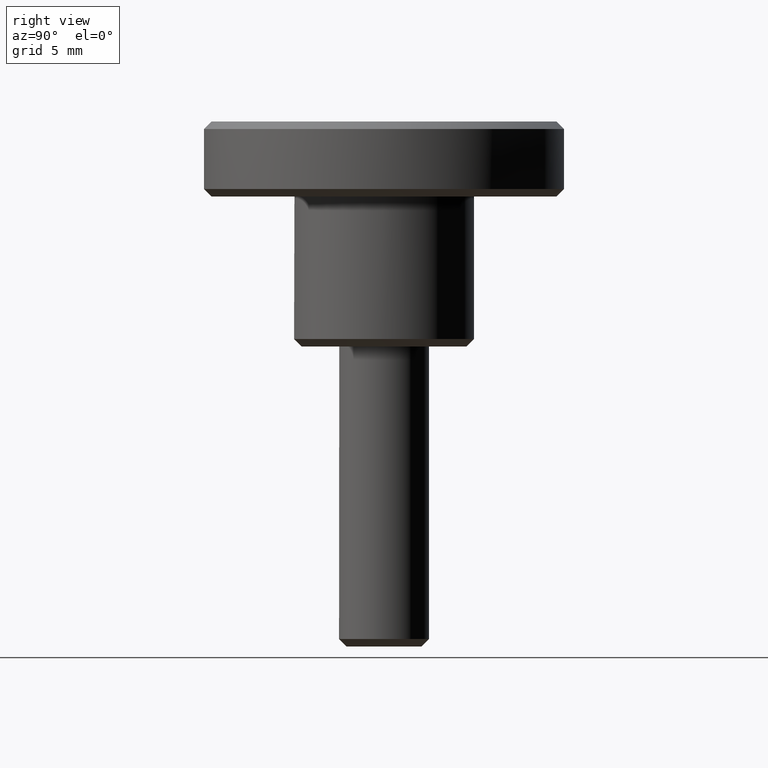
[diagram: clean part render]
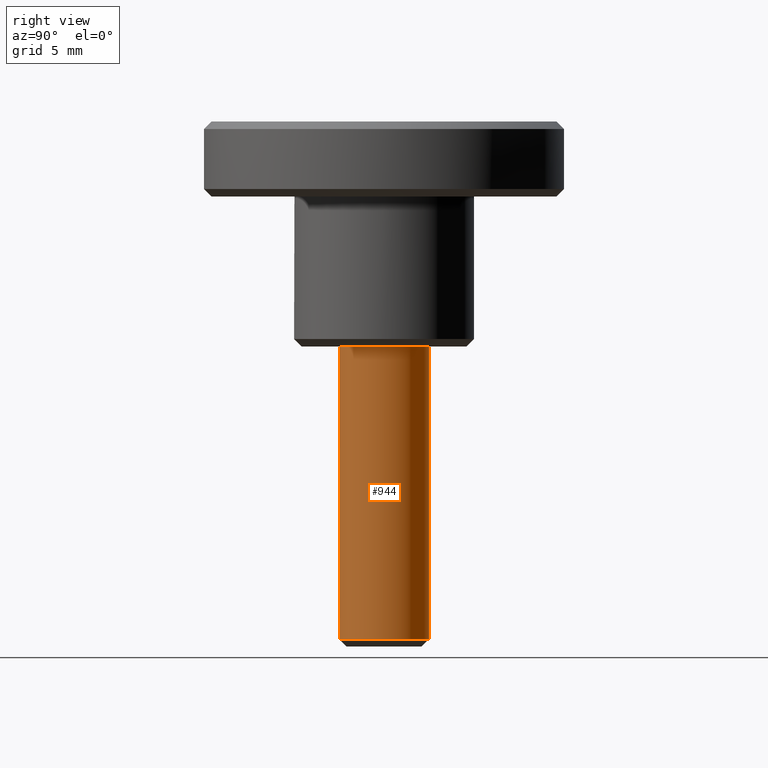
[diagram: same view with one face highlighted and labeled with its STEP entity id]
A machine part, right view. The second image highlights one B-rep face of the part: STEP entity #944.
In plain terms, the highlighted face is a freeform B-spline surface patch.
Its self-contained STEP definition (entity closure, byte-faithful):
#68=CARTESIAN_POINT('',(0.372382066943663,-2.976798884072443,-19.500000000000000));
#69=VERTEX_POINT('',#68);
#126=CARTESIAN_POINT('',(-0.026179606512021,2.999885769192334,-19.500000000000000));
#127=VERTEX_POINT('',#126);
#133=CARTESIAN_POINT('',(3.0,0.0,-19.500000000000000));
#134=VERTEX_POINT('',#133);
#135=CARTESIAN_POINT('',(3.0,0.0,-19.500000000000000));
#136=CARTESIAN_POINT('',(3.0,3.0,-19.500000000000004));
#137=CARTESIAN_POINT('',(0.0,3.0,-19.500000000000000));
#138=CARTESIAN_POINT('',(-0.013090052495911,3.000000000000000,-19.500000000000007));
#139=CARTESIAN_POINT('',(-0.026179606512021,2.999885769192333,-19.500000000000004));
#147=(BOUNDED_CURVE()B_SPLINE_CURVE(2,(#135,#136,#137,#138,#139),.UNSPECIFIED.,.F.,.U.)B_SPLINE_CURVE_WITH_KNOTS((3,2,3),(0.500000000000000,0.750000000000000,0.751539894338957),.UNSPECIFIED.)CURVE()GEOMETRIC_REPRESENTATION_ITEM()RATIONAL_B_SPLINE_CURVE((1.0,0.707106781186548,1.0,0.998195901561721,0.996414028091219))REPRESENTATION_ITEM(''));
#148=EDGE_CURVE('',#134,#127,#147,.T.);
#150=CARTESIAN_POINT('',(0.372382066943663,-2.976798884072443,-19.500000000000000));
#151=CARTESIAN_POINT('',(3.000000000000000,-2.648097539052714,-19.499999999999996));
#152=CARTESIAN_POINT('',(3.0,0.0,-19.500000000000000));
#160=(BOUNDED_CURVE()B_SPLINE_CURVE(2,(#150,#151,#152),.UNSPECIFIED.,.F.,.U.)B_SPLINE_CURVE_WITH_KNOTS((3,3),(0.271473819102889,0.500000000000000),.UNSPECIFIED.)CURVE()GEOMETRIC_REPRESENTATION_ITEM()RATIONAL_B_SPLINE_CURVE((0.954005643485778,0.732264925175600,1.0))REPRESENTATION_ITEM(''));
#161=EDGE_CURVE('',#69,#134,#160,.T.);
#878=CARTESIAN_POINT('',(0.372384006239488,-2.976798641476615,-19.987500000000008));
#879=CARTESIAN_POINT('',(3.023198491507334,-2.645193774399663,-19.987499999999997));
#880=CARTESIAN_POINT('',(2.999885769192513,0.026179606495122,-19.987500000000001));
#881=CARTESIAN_POINT('',(2.973706162697392,3.026065375687634,-19.987500000000001));
#882=CARTESIAN_POINT('',(-0.026179606495122,2.999885769192513,-19.987500000000001));
#883=CARTESIAN_POINT('',(0.372384006239488,-2.976798641476615,0.499687500000000));
#884=CARTESIAN_POINT('',(3.023198491507334,-2.645193774399663,0.499687500000000));
#885=CARTESIAN_POINT('',(2.999885769192513,0.026179606495122,0.499687500000000));
#886=CARTESIAN_POINT('',(2.973706162697392,3.026065375687634,0.499687500000000));
#887=CARTESIAN_POINT('',(-0.026179606495122,2.999885769192513,0.499687500000000));
#895=(BOUNDED_SURFACE()B_SPLINE_SURFACE(2,1,((#878,#883),(#879,#884),(#880,#885),(#881,#886),(#882,#887)),.UNSPECIFIED.,.F.,.F.,.U.)B_SPLINE_SURFACE_WITH_KNOTS((3,2,3),(2,2),(0.0,4.572917728598967,9.543480477076107),(0.0,20.487187500000012),.UNSPECIFIED.)GEOMETRIC_REPRESENTATION_ITEM()RATIONAL_B_SPLINE_SURFACE(((0.956886118190660,0.956886118190660),(0.730538238691624,0.730538238691624),(1.0,1.0),(0.707106781186548,0.707106781186548),(1.0,1.0)))REPRESENTATION_ITEM('')SURFACE());
#896=ORIENTED_EDGE('',*,*,#161,.T.);
#897=ORIENTED_EDGE('',*,*,#148,.T.);
#898=CARTESIAN_POINT('',(-0.026179606523298,2.999885769192267,-1.387779E-016));
#899=VERTEX_POINT('',#898);
#900=CARTESIAN_POINT('',(-0.026179606512021,2.999885769192334,-19.500000000000000));
#901=CARTESIAN_POINT('',(-0.026179606523298,2.999885769192267,-1.387779E-016));
#902=QUASI_UNIFORM_CURVE('',1,(#900,#901),.UNSPECIFIED.,.F.,.U.);
#903=EDGE_CURVE('',#127,#899,#902,.T.);
#904=ORIENTED_EDGE('',*,*,#903,.T.);
#905=CARTESIAN_POINT('',(3.0,0.0,0.0));
#906=VERTEX_POINT('',#905);
#907=CARTESIAN_POINT('',(-0.026179606523298,2.999885769192267,-1.387779E-016));
#908=CARTESIAN_POINT('',(-0.013090052490283,3.000000000000001,0.0));
#909=CARTESIAN_POINT('',(0.0,3.0,0.0));
#910=CARTESIAN_POINT('',(3.0,3.0,0.0));
#911=CARTESIAN_POINT('',(3.0,0.0,0.0));
#919=(BOUNDED_CURVE()B_SPLINE_CURVE(2,(#907,#908,#909,#910,#911),.UNSPECIFIED.,.F.,.U.)B_SPLINE_CURVE_WITH_KNOTS((3,2,3),(0.248460105661704,0.250000000000000,0.500000000000000),.UNSPECIFIED.)CURVE()GEOMETRIC_REPRESENTATION_ITEM()RATIONAL_B_SPLINE_CURVE((0.996414028092748,0.998195901562495,1.0,0.707106781186548,1.0))REPRESENTATION_ITEM(''));
#920=EDGE_CURVE('',#899,#906,#919,.T.);
#921=ORIENTED_EDGE('',*,*,#920,.T.);
#922=CARTESIAN_POINT('',(0.372384006262696,-2.976798641473713,-1.450307E-016));
#923=VERTEX_POINT('',#922);
#924=CARTESIAN_POINT('',(3.0,0.0,0.0));
#925=CARTESIAN_POINT('',(3.000000000000001,-2.648095800409071,0.0));
#926=CARTESIAN_POINT('',(0.372384006262696,-2.976798641473713,-1.450307E-016));
#934=(BOUNDED_CURVE()B_SPLINE_CURVE(2,(#924,#925,#926),.UNSPECIFIED.,.F.,.U.)B_SPLINE_CURVE_WITH_KNOTS((3,3),(0.500000000000000,0.728526071026669),.UNSPECIFIED.)CURVE()GEOMETRIC_REPRESENTATION_ITEM()RATIONAL_B_SPLINE_CURVE((1.0,0.732265053896829,0.954005430269615))REPRESENTATION_ITEM(''));
#935=EDGE_CURVE('',#906,#923,#934,.T.);
#936=ORIENTED_EDGE('',*,*,#935,.T.);
#937=CARTESIAN_POINT('',(0.372382066943663,-2.976798884072443,-19.500000000000000));
#938=CARTESIAN_POINT('',(0.372384006262696,-2.976798641473713,-1.450307E-016));
#939=QUASI_UNIFORM_CURVE('',1,(#937,#938),.UNSPECIFIED.,.F.,.U.);
#940=EDGE_CURVE('',#69,#923,#939,.T.);
#941=ORIENTED_EDGE('',*,*,#940,.F.);
#942=EDGE_LOOP('',(#896,#897,#904,#921,#936,#941));
#943=FACE_OUTER_BOUND('',#942,.T.);
#944=ADVANCED_FACE('',(#943),#895,.T.);